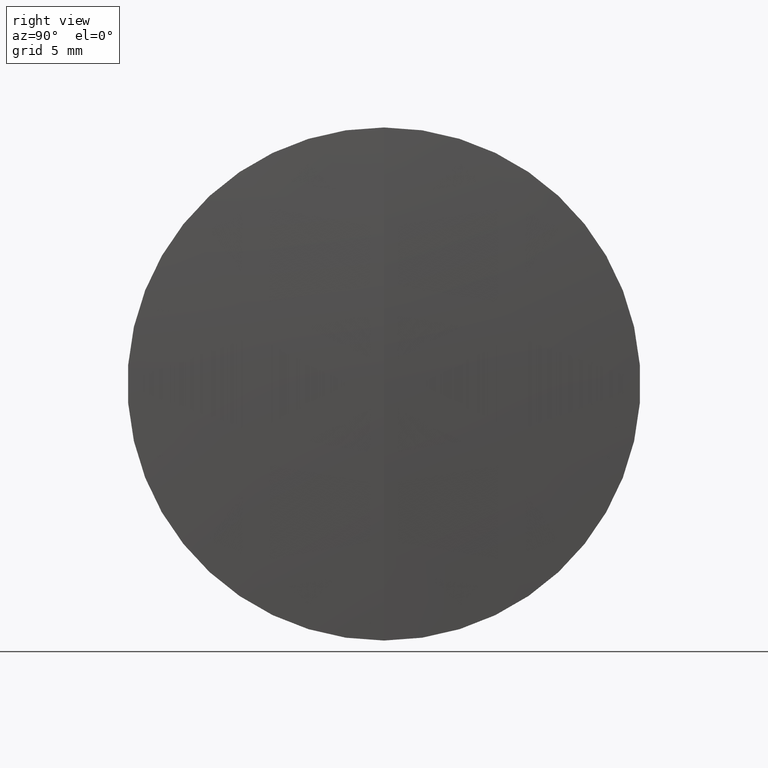
[diagram: clean part render]
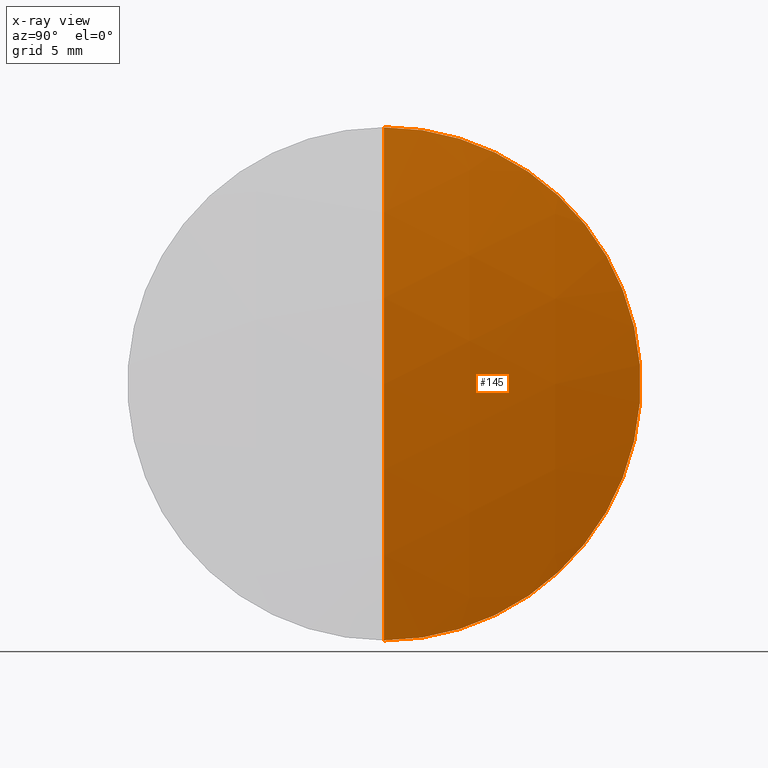
[diagram: x-ray — body ghosted, one internal face saturated and labeled with its STEP entity id]
A machine part, right view, then the same camera in x-ray: the body is ghosted and one INTERNAL B-rep face — a face not visible from any outside direction — is saturated and labeled: STEP entity #145.
In plain terms, the highlighted spherical surface has radius 81.336 mm.
Its self-contained STEP definition (entity closure, byte-faithful):
#1 = DIRECTION ( 'NONE',  ( 0.0000000000000000000, -1.224646799147353200E-016, 1.000000000000000000 ) ) ;
#21 = CARTESIAN_POINT ( 'NONE',  ( 260.6997343511442300, 0.0000000000000000000, 0.0000000000000000000 ) ) ;
#53 = AXIS2_PLACEMENT_3D ( 'NONE', #263, #98, #1 ) ;
#55 = AXIS2_PLACEMENT_3D ( 'NONE', #176, #126, #238 ) ;
#85 = CIRCLE ( 'NONE', #53, 81.33599999999999900 ) ;
#98 = DIRECTION ( 'NONE',  ( -0.0000000000000000000, 1.000000000000000000, 1.224646799147353200E-016 ) ) ;
#101 = CARTESIAN_POINT ( 'NONE',  ( 260.6997343511442300, 0.0000000000000000000, 15.75000000000000000 ) ) ;
#103 = ORIENTED_EDGE ( 'NONE', *, *, #231, .T. ) ;
#106 = EDGE_CURVE ( 'NONE', #114, #230, #111, .T. ) ;
#111 = CIRCLE ( 'NONE', #237, 15.75000000000000000 ) ;
#113 = VERTEX_POINT ( 'NONE', #270 ) ;
#114 = VERTEX_POINT ( 'NONE', #101 ) ;
#123 = EDGE_CURVE ( 'NONE', #113, #114, #129, .T. ) ;
#126 = DIRECTION ( 'NONE',  ( 0.0000000000000000000, -1.000000000000000000, 0.0000000000000000000 ) ) ;
#129 = CIRCLE ( 'NONE', #55, 81.33599999999999900 ) ;
#145 = ADVANCED_FACE ( 'NONE', ( #331 ), #224, .T. ) ;
#156 = ORIENTED_EDGE ( 'NONE', *, *, #106, .F. ) ;
#163 = DIRECTION ( 'NONE',  ( 0.0000000000000000000, 1.000000000000000000, 0.0000000000000000000 ) ) ;
#172 = CARTESIAN_POINT ( 'NONE',  ( 260.6997343511442300, 1.928818708657081300E-015, -15.75000000000000000 ) ) ;
#176 = CARTESIAN_POINT ( 'NONE',  ( 180.9032281870270000, 0.0000000000000000000, 2.168404344971008900E-016 ) ) ;
#187 = DIRECTION ( 'NONE',  ( -1.000000000000000000, -0.0000000000000000000, -0.0000000000000000000 ) ) ;
#224 = SPHERICAL_SURFACE ( 'NONE', #288, 81.33599999999999900 ) ;
#225 = EDGE_LOOP ( 'NONE', ( #248, #103, #156 ) ) ;
#230 = VERTEX_POINT ( 'NONE', #172 ) ;
#231 = EDGE_CURVE ( 'NONE', #113, #230, #85, .T. ) ;
#237 = AXIS2_PLACEMENT_3D ( 'NONE', #21, #187, #343 ) ;
#238 = DIRECTION ( 'NONE',  ( 0.0000000000000000000, 0.0000000000000000000, -1.000000000000000000 ) ) ;
#247 = CARTESIAN_POINT ( 'NONE',  ( 180.9032281870270000, 0.0000000000000000000, 2.168404344971008900E-016 ) ) ;
#248 = ORIENTED_EDGE ( 'NONE', *, *, #123, .F. ) ;
#259 = DIRECTION ( 'NONE',  ( 0.0000000000000000000, 0.0000000000000000000, 1.000000000000000000 ) ) ;
#263 = CARTESIAN_POINT ( 'NONE',  ( 180.9032281870270000, 0.0000000000000000000, 2.168404344971008900E-016 ) ) ;
#270 = CARTESIAN_POINT ( 'NONE',  ( 262.2392281870269800, 0.0000000000000000000, 5.197234037269557100E-015 ) ) ;
#288 = AXIS2_PLACEMENT_3D ( 'NONE', #247, #163, #259 ) ;
#331 = FACE_OUTER_BOUND ( 'NONE', #225, .T. ) ;
#343 = DIRECTION ( 'NONE',  ( 0.0000000000000000000, 0.0000000000000000000, 1.000000000000000000 ) ) ;